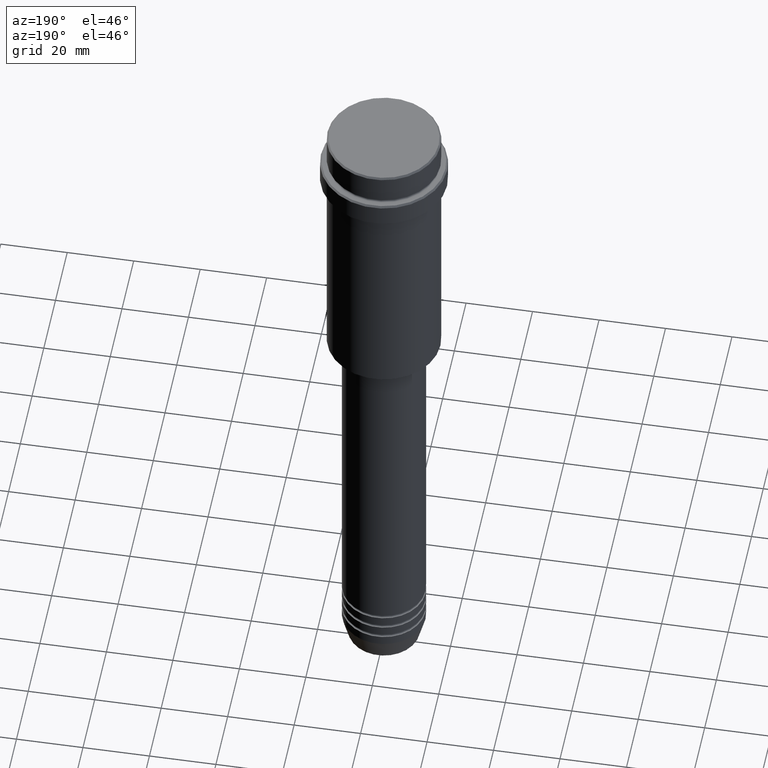
[diagram: clean part render]
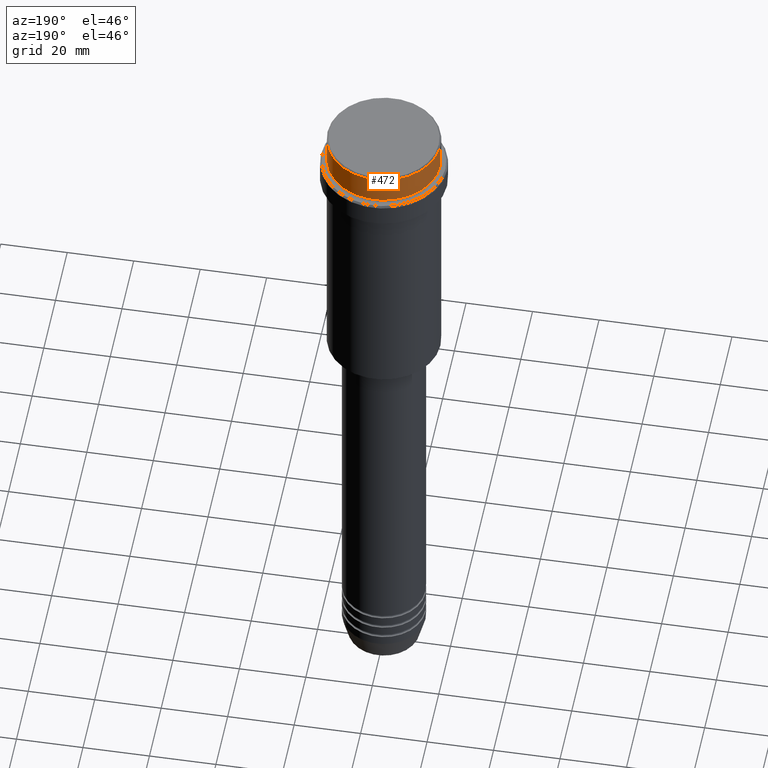
[diagram: same view with one face highlighted and labeled with its STEP entity id]
A machine part, auxiliary view. The second image highlights one B-rep face of the part: STEP entity #472.
In plain terms, the highlighted cylindrical surface (partial cylindrical patch) has radius 17 mm, axis along (-0, -0, 1).
Its self-contained STEP definition (entity closure, byte-faithful):
#18 = DIRECTION ( 'NONE',  ( 0.000000000000000000, 0.000000000000000000, -1.000000000000000000 ) ) ;
#28 = CARTESIAN_POINT ( 'NONE',  ( -16.99999999999998579, 2.081899558550499096E-15, 0.000000000000000000 ) ) ;
#31 = VERTEX_POINT ( 'NONE', #1303 ) ;
#100 = AXIS2_PLACEMENT_3D ( 'NONE', #1085, #18, #451 ) ;
#112 = CARTESIAN_POINT ( 'NONE',  ( 0.000000000000000000, 0.000000000000000000, 0.000000000000000000 ) ) ;
#174 = VERTEX_POINT ( 'NONE', #1298 ) ;
#221 = DIRECTION ( 'NONE',  ( 1.000000000000000000, 0.000000000000000000, 0.000000000000000000 ) ) ;
#232 = ORIENTED_EDGE ( 'NONE', *, *, #593, .T. ) ;
#292 = EDGE_CURVE ( 'NONE', #1221, #31, #351, .T. ) ;
#332 = ORIENTED_EDGE ( 'NONE', *, *, #644, .F. ) ;
#351 = LINE ( 'NONE', #28, #624 ) ;
#360 = LINE ( 'NONE', #1347, #1066 ) ;
#451 = DIRECTION ( 'NONE',  ( 1.000000000000000000, 0.000000000000000000, 0.000000000000000000 ) ) ;
#472 = ADVANCED_FACE ( 'NONE', ( #639 ), #981, .T. ) ;
#515 = CIRCLE ( 'NONE', #962, 16.99999999999997513 ) ;
#519 = VERTEX_POINT ( 'NONE', #1308 ) ;
#593 = EDGE_CURVE ( 'NONE', #31, #174, #1242, .T. ) ;
#611 = ORIENTED_EDGE ( 'NONE', *, *, #1102, .T. ) ;
#624 = VECTOR ( 'NONE', #1006, 1000.000000000000000 ) ;
#639 = FACE_OUTER_BOUND ( 'NONE', #1029, .T. ) ;
#644 = EDGE_CURVE ( 'NONE', #519, #174, #360, .T. ) ;
#695 = CARTESIAN_POINT ( 'NONE',  ( 0.000000000000000000, 0.000000000000000000, -8.999999999999998224 ) ) ;
#736 = AXIS2_PLACEMENT_3D ( 'NONE', #112, #1413, #882 ) ;
#764 = DIRECTION ( 'NONE',  ( -0.000000000000000000, -0.000000000000000000, 1.000000000000000000 ) ) ;
#882 = DIRECTION ( 'NONE',  ( 1.000000000000000000, 0.000000000000000000, 0.000000000000000000 ) ) ;
#920 = DIRECTION ( 'NONE',  ( -0.000000000000000000, -0.000000000000000000, 1.000000000000000000 ) ) ;
#962 = AXIS2_PLACEMENT_3D ( 'NONE', #695, #764, #221 ) ;
#981 = CYLINDRICAL_SURFACE ( 'NONE', #736, 16.99999999999998579 ) ;
#1006 = DIRECTION ( 'NONE',  ( -0.000000000000000000, -0.000000000000000000, 1.000000000000000000 ) ) ;
#1029 = EDGE_LOOP ( 'NONE', ( #611, #1140, #232, #332 ) ) ;
#1066 = VECTOR ( 'NONE', #920, 1000.000000000000000 ) ;
#1085 = CARTESIAN_POINT ( 'NONE',  ( 0.000000000000000000, 0.000000000000000000, -0.5000000000000108802 ) ) ;
#1102 = EDGE_CURVE ( 'NONE', #519, #1221, #515, .T. ) ;
#1140 = ORIENTED_EDGE ( 'NONE', *, *, #292, .T. ) ;
#1221 = VERTEX_POINT ( 'NONE', #1263 ) ;
#1242 = CIRCLE ( 'NONE', #100, 16.99999999999998579 ) ;
#1263 = CARTESIAN_POINT ( 'NONE',  ( -16.99999999999997513, 2.081899558550498307E-15, -8.999999999999998224 ) ) ;
#1298 = CARTESIAN_POINT ( 'NONE',  ( 16.99999999999998579, 0.000000000000000000, -0.5000000000000108802 ) ) ;
#1303 = CARTESIAN_POINT ( 'NONE',  ( -16.99999999999998579, 2.081899558550499096E-15, -0.5000000000000108802 ) ) ;
#1308 = CARTESIAN_POINT ( 'NONE',  ( 16.99999999999997513, 0.000000000000000000, -8.999999999999998224 ) ) ;
#1347 = CARTESIAN_POINT ( 'NONE',  ( 16.99999999999998579, 0.000000000000000000, 0.000000000000000000 ) ) ;
#1413 = DIRECTION ( 'NONE',  ( -0.000000000000000000, -0.000000000000000000, 1.000000000000000000 ) ) ;